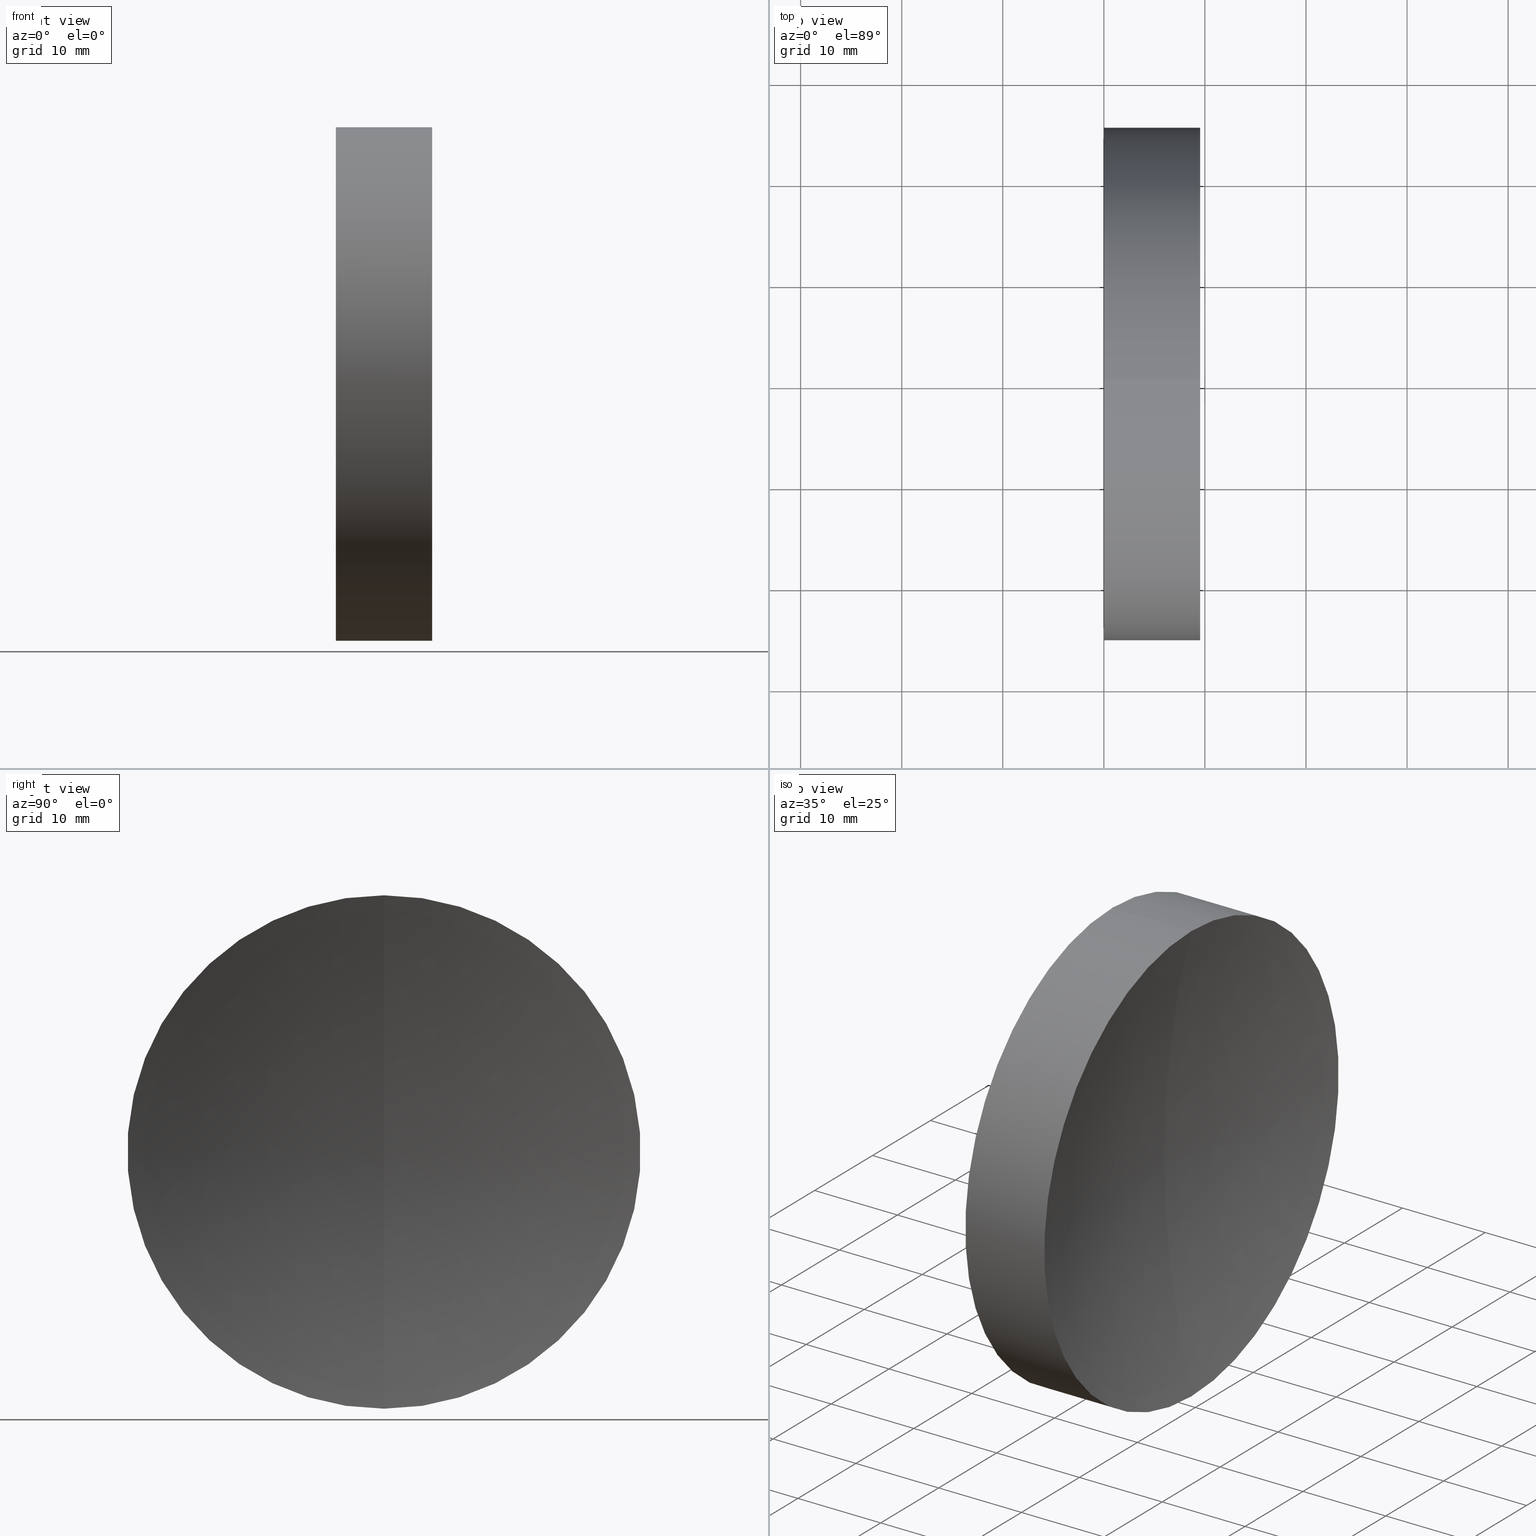
[diagram: canonical four-view strip — front | top / right | iso, engineering-drawing reading convention]
A machine part, canonical four-view strip (front | top / right | iso — engineering-drawing reading convention). The complete STEP part file that produces these views, byte-faithful:
ISO-10303-21;
HEADER;
FILE_DESCRIPTION (( 'STEP AP214' ),
    '1' );
FILE_NAME ('432530.STEP',
    '2019-08-28T02:59:02',
    ( 'user' ),
    ( '΢���й�' ),
    'SwSTEP 2.0',
    'SolidWorks 2016',
    '' );
FILE_SCHEMA (( 'AUTOMOTIVE_DESIGN' ));
ENDSEC;

DATA;
#1 = ORIENTED_EDGE ( 'NONE', *, *, #132, .T. ) ;
#2 = APPLICATION_CONTEXT ( 'automotive_design' ) ;
#3 = ORIENTED_EDGE ( 'NONE', *, *, #107, .T. ) ;
#4 = CARTESIAN_POINT ( 'NONE',  ( 0.0000000000000000000, 0.0000000000000000000, 0.0000000000000000000 ) ) ;
#5 = DIRECTION ( 'NONE',  ( -1.000000000000000000, -0.0000000000000000000, -0.0000000000000000000 ) ) ;
#6 = FACE_OUTER_BOUND ( 'NONE', #130, .T. ) ;
#7 = MANIFOLD_SOLID_BREP ( '��ת1', #49 ) ;
#8 =( NAMED_UNIT ( * ) PLANE_ANGLE_UNIT ( ) SI_UNIT ( $, .RADIAN. ) );
#9 = ADVANCED_FACE ( 'NONE', ( #109 ), #103, .T. ) ;
#10 = PRESENTATION_LAYER_ASSIGNMENT (  '', '', ( #33 ) ) ;
#11 = SURFACE_SIDE_STYLE ('',( #65 ) ) ;
#12 = ORIENTED_EDGE ( 'NONE', *, *, #78, .T. ) ;
#13 =( NAMED_UNIT ( * ) PLANE_ANGLE_UNIT ( ) SI_UNIT ( $, .RADIAN. ) );
#14 = VERTEX_POINT ( 'NONE', #116 ) ;
#15 = DIRECTION ( 'NONE',  ( 0.0000000000000000000, 1.000000000000000000, 0.0000000000000000000 ) ) ;
#16 = PRESENTATION_STYLE_ASSIGNMENT (( #102 ) ) ;
#17 =( LENGTH_UNIT ( ) NAMED_UNIT ( * ) SI_UNIT ( .MILLI., .METRE. ) );
#18 = MECHANICAL_DESIGN_GEOMETRIC_PRESENTATION_REPRESENTATION (  '', ( #33 ), #28 ) ;
#19 = DIRECTION ( 'NONE',  ( -1.000000000000000000, -0.0000000000000000000, -0.0000000000000000000 ) ) ;
#20 =( GEOMETRIC_REPRESENTATION_CONTEXT ( 3 ) GLOBAL_UNCERTAINTY_ASSIGNED_CONTEXT ( ( #114 ) ) GLOBAL_UNIT_ASSIGNED_CONTEXT ( ( #37, #13, #131 ) ) REPRESENTATION_CONTEXT ( 'NONE', 'WORKASPACE' ) );
#21 = ADVANCED_BREP_SHAPE_REPRESENTATION ( '432530', ( #7, #51 ), #25 ) ;
#22 = DIRECTION ( 'NONE',  ( 0.0000000000000000000, 0.0000000000000000000, 1.000000000000000000 ) ) ;
#23 = ORIENTED_EDGE ( 'NONE', *, *, #66, .F. ) ;
#24 =( LENGTH_UNIT ( ) NAMED_UNIT ( * ) SI_UNIT ( .MILLI., .METRE. ) );
#25 =( GEOMETRIC_REPRESENTATION_CONTEXT ( 3 ) GLOBAL_UNCERTAINTY_ASSIGNED_CONTEXT ( ( #155 ) ) GLOBAL_UNIT_ASSIGNED_CONTEXT ( ( #24, #148, #150 ) ) REPRESENTATION_CONTEXT ( 'NONE', 'WORKASPACE' ) );
#26 = CIRCLE ( 'NONE', #44, 25.40000000000006300 ) ;
#27 = SPHERICAL_SURFACE ( 'NONE', #47, 99.99999999999997200 ) ;
#28 =( GEOMETRIC_REPRESENTATION_CONTEXT ( 3 ) GLOBAL_UNCERTAINTY_ASSIGNED_CONTEXT ( ( #129 ) ) GLOBAL_UNIT_ASSIGNED_CONTEXT ( ( #17, #8, #161 ) ) REPRESENTATION_CONTEXT ( 'NONE', 'WORKASPACE' ) );
#29 = PRODUCT_DEFINITION_CONTEXT ( 'detailed design', #2, 'design' ) ;
#30 = AXIS2_PLACEMENT_3D ( 'NONE', #94, #69, #144 ) ;
#31 = DIRECTION ( 'NONE',  ( 0.0000000000000000000, 0.0000000000000000000, 1.000000000000000000 ) ) ;
#32 = LINE ( 'NONE', #135, #63 ) ;
#33 = STYLED_ITEM ( 'NONE', ( #85 ), #21 ) ;
#34 = DIRECTION ( 'NONE',  ( -1.000000000000000000, -0.0000000000000000000, -0.0000000000000000000 ) ) ;
#35 = ORIENTED_EDGE ( 'NONE', *, *, #78, .F. ) ;
#36 = EDGE_CURVE ( 'NONE', #86, #89, #141, .T. ) ;
#37 =( LENGTH_UNIT ( ) NAMED_UNIT ( * ) SI_UNIT ( .MILLI., .METRE. ) );
#38 = SHAPE_DEFINITION_REPRESENTATION ( #125, #21 ) ;
#39 = SPHERICAL_SURFACE ( 'NONE', #133, 99.99999999999997200 ) ;
#40 = AXIS2_PLACEMENT_3D ( 'NONE', #159, #83, #95 ) ;
#41 = CARTESIAN_POINT ( 'NONE',  ( 106.2499999999999600, 0.0000000000000000000, 0.0000000000000000000 ) ) ;
#42 = ORIENTED_EDGE ( 'NONE', *, *, #107, .F. ) ;
#43 = DIRECTION ( 'NONE',  ( 0.0000000000000000000, 1.000000000000000000, 0.0000000000000000000 ) ) ;
#44 = AXIS2_PLACEMENT_3D ( 'NONE', #108, #5, #31 ) ;
#45 = PRODUCT ( '432530', '432530', '', ( #157 ) ) ;
#46 = APPLICATION_PROTOCOL_DEFINITION ( 'draft international standard', 'automotive_design', 1998, #2 ) ;
#47 = AXIS2_PLACEMENT_3D ( 'NONE', #67, #43, #104 ) ;
#48 = DIRECTION ( 'NONE',  ( -0.0000000000000000000, 1.000000000000000000, 1.224646799147353200E-016 ) ) ;
#49 = CLOSED_SHELL ( 'NONE', ( #112, #164, #126, #59, #9 ) ) ;
#50 = EDGE_LOOP ( 'NONE', ( #3, #60 ) ) ;
#51 = AXIS2_PLACEMENT_3D ( 'NONE', #4, #22, #97 ) ;
#52 = COLOUR_RGB ( '',1.000000000000000000, 1.000000000000000000, 1.000000000000000000 ) ;
#53 = DIRECTION ( 'NONE',  ( -1.000000000000000000, -0.0000000000000000000, -0.0000000000000000000 ) ) ;
#54 = ORIENTED_EDGE ( 'NONE', *, *, #99, .F. ) ;
#55 = DIRECTION ( 'NONE',  ( 0.0000000000000000000, 0.0000000000000000000, 1.000000000000000000 ) ) ;
#56 = SURFACE_SIDE_STYLE ('',( #138 ) ) ;
#57 = LINE ( 'NONE', #136, #91 ) ;
#58 = ORIENTED_EDGE ( 'NONE', *, *, #82, .F. ) ;
#59 = ADVANCED_FACE ( 'NONE', ( #6 ), #39, .F. ) ;
#60 = ORIENTED_EDGE ( 'NONE', *, *, #36, .T. ) ;
#61 = CARTESIAN_POINT ( 'NONE',  ( 9.529578164691605100, 3.110602869834284000E-015, -25.40000000000005500 ) ) ;
#62 = DIRECTION ( 'NONE',  ( 0.0000000000000000000, -1.224646799147353200E-016, 1.000000000000000000 ) ) ;
#63 = VECTOR ( 'NONE', #19, 1000.000000000000000 ) ;
#64 = PRODUCT_DEFINITION ( 'δ֪', '', #72, #29 ) ;
#65 = SURFACE_STYLE_FILL_AREA ( #79 ) ;
#66 = EDGE_CURVE ( 'NONE', #68, #14, #70, .T. ) ;
#67 = CARTESIAN_POINT ( 'NONE',  ( 106.2499999999999600, 0.0000000000000000000, 0.0000000000000000000 ) ) ;
#68 = VERTEX_POINT ( 'NONE', #61 ) ;
#69 = DIRECTION ( 'NONE',  ( 1.000000000000000000, 0.0000000000000000000, 0.0000000000000000000 ) ) ;
#70 = CIRCLE ( 'NONE', #160, 25.40000000000006300 ) ;
#71 = FILL_AREA_STYLE ('',( #117 ) ) ;
#72 = PRODUCT_DEFINITION_FORMATION_WITH_SPECIFIED_SOURCE ( '�κ�', '', #45, .NOT_KNOWN. ) ;
#73 = CARTESIAN_POINT ( 'NONE',  ( 0.0000000000000000000, 0.0000000000000000000, 0.0000000000000000000 ) ) ;
#74 = CARTESIAN_POINT ( 'NONE',  ( 0.0000000000000000000, 0.0000000000000000000, 0.0000000000000000000 ) ) ;
#75 = CARTESIAN_POINT ( 'NONE',  ( 0.0000000000000000000, 0.0000000000000000000, 0.0000000000000000000 ) ) ;
#76 = CARTESIAN_POINT ( 'NONE',  ( 9.529578164691605100, 0.0000000000000000000, 0.0000000000000000000 ) ) ;
#77 = CIRCLE ( 'NONE', #127, 99.99999999999997200 ) ;
#78 = EDGE_CURVE ( 'NONE', #68, #92, #77, .T. ) ;
#79 = FILL_AREA_STYLE ('',( #101 ) ) ;
#80 = DIRECTION ( 'NONE',  ( -1.000000000000000000, -0.0000000000000000000, -0.0000000000000000000 ) ) ;
#81 = PRODUCT_RELATED_PRODUCT_CATEGORY ( 'part', '', ( #45 ) ) ;
#82 = EDGE_CURVE ( 'NONE', #14, #68, #26, .T. ) ;
#83 = DIRECTION ( 'NONE',  ( 0.0000000000000000000, -1.000000000000000000, 0.0000000000000000000 ) ) ;
#84 = EDGE_CURVE ( 'NONE', #14, #92, #122, .T. ) ;
#85 = PRESENTATION_STYLE_ASSIGNMENT (( #147 ) ) ;
#86 = VERTEX_POINT ( 'NONE', #113 ) ;
#87 = AXIS2_PLACEMENT_3D ( 'NONE', #142, #80, #152 ) ;
#88 = CIRCLE ( 'NONE', #162, 25.39999999999999900 ) ;
#89 = VERTEX_POINT ( 'NONE', #151 ) ;
#90 = ORIENTED_EDGE ( 'NONE', *, *, #82, .T. ) ;
#91 = VECTOR ( 'NONE', #34, 1000.000000000000000 ) ;
#92 = VERTEX_POINT ( 'NONE', #123 ) ;
#93 = ORIENTED_EDGE ( 'NONE', *, *, #66, .T. ) ;
#94 = CARTESIAN_POINT ( 'NONE',  ( 0.0000000000000000000, 0.0000000000000000000, 0.0000000000000000000 ) ) ;
#95 = DIRECTION ( 'NONE',  ( 0.0000000000000000000, 0.0000000000000000000, -1.000000000000000000 ) ) ;
#96 = FACE_OUTER_BOUND ( 'NONE', #50, .T. ) ;
#97 = DIRECTION ( 'NONE',  ( 1.000000000000000000, 0.0000000000000000000, 0.0000000000000000000 ) ) ;
#98 = MECHANICAL_DESIGN_GEOMETRIC_PRESENTATION_REPRESENTATION (  '', ( #105 ), #20 ) ;
#99 = EDGE_CURVE ( 'NONE', #14, #89, #57, .T. ) ;
#100 = FACE_OUTER_BOUND ( 'NONE', #154, .T. ) ;
#101 = FILL_AREA_STYLE_COLOUR ( '', #52 ) ;
#102 = SURFACE_STYLE_USAGE ( .BOTH. , #11 ) ;
#103 = CYLINDRICAL_SURFACE ( 'NONE', #87, 25.40000000000003100 ) ;
#104 = DIRECTION ( 'NONE',  ( 0.0000000000000000000, 0.0000000000000000000, 1.000000000000000000 ) ) ;
#105 = STYLED_ITEM ( 'NONE', ( #16 ), #7 ) ;
#106 = EDGE_LOOP ( 'NONE', ( #90, #1, #42, #54 ) ) ;
#107 = EDGE_CURVE ( 'NONE', #89, #86, #88, .T. ) ;
#108 = CARTESIAN_POINT ( 'NONE',  ( 9.529578164691605100, 0.0000000000000000000, 0.0000000000000000000 ) ) ;
#109 = FACE_OUTER_BOUND ( 'NONE', #165, .T. ) ;
#110 = DIRECTION ( 'NONE',  ( 0.0000000000000000000, 0.0000000000000000000, 1.000000000000000000 ) ) ;
#111 = CARTESIAN_POINT ( 'NONE',  ( 106.2499999999999600, 0.0000000000000000000, 0.0000000000000000000 ) ) ;
#112 = ADVANCED_FACE ( 'NONE', ( #128 ), #166, .T. ) ;
#113 = CARTESIAN_POINT ( 'NONE',  ( 0.0000000000000000000, 3.110602869834279200E-015, -25.39999999999999900 ) ) ;
#114 = UNCERTAINTY_MEASURE_WITH_UNIT (LENGTH_MEASURE( 1.000000000000000100E-005 ), #37, 'distance_accuracy_value', 'NONE');
#115 = PRESENTATION_LAYER_ASSIGNMENT (  '', '', ( #105 ) ) ;
#116 = CARTESIAN_POINT ( 'NONE',  ( 9.529578164691605100, 0.0000000000000000000, 25.40000000000005500 ) ) ;
#117 = FILL_AREA_STYLE_COLOUR ( '', #153 ) ;
#118 = PLANE ( 'NONE',  #30 ) ;
#119 = ORIENTED_EDGE ( 'NONE', *, *, #99, .T. ) ;
#120 = APPLICATION_CONTEXT ( 'automotive_design' ) ;
#121 = DIRECTION ( 'NONE',  ( -1.000000000000000000, -0.0000000000000000000, -0.0000000000000000000 ) ) ;
#122 = CIRCLE ( 'NONE', #40, 99.99999999999997200 ) ;
#123 = CARTESIAN_POINT ( 'NONE',  ( 6.249999999999977800, 0.0000000000000000000, 6.123233995736764500E-015 ) ) ;
#124 = ORIENTED_EDGE ( 'NONE', *, *, #84, .F. ) ;
#125 = PRODUCT_DEFINITION_SHAPE ( 'NONE', 'NONE',  #64 ) ;
#126 = ADVANCED_FACE ( 'NONE', ( #96 ), #118, .F. ) ;
#127 = AXIS2_PLACEMENT_3D ( 'NONE', #111, #48, #62 ) ;
#128 = FACE_OUTER_BOUND ( 'NONE', #106, .T. ) ;
#129 = UNCERTAINTY_MEASURE_WITH_UNIT (LENGTH_MEASURE( 1.000000000000000100E-005 ), #17, 'distance_accuracy_value', 'NONE');
#130 = EDGE_LOOP ( 'NONE', ( #35, #58, #134 ) ) ;
#131 =( NAMED_UNIT ( * ) SI_UNIT ( $, .STERADIAN. ) SOLID_ANGLE_UNIT ( ) );
#132 = EDGE_CURVE ( 'NONE', #68, #86, #32, .T. ) ;
#133 = AXIS2_PLACEMENT_3D ( 'NONE', #41, #15, #110 ) ;
#134 = ORIENTED_EDGE ( 'NONE', *, *, #84, .T. ) ;
#135 = CARTESIAN_POINT ( 'NONE',  ( 0.0000000000000000000, 3.110602869834280800E-015, -25.40000000000003100 ) ) ;
#136 = CARTESIAN_POINT ( 'NONE',  ( 0.0000000000000000000, 0.0000000000000000000, 25.40000000000003100 ) ) ;
#137 = APPLICATION_PROTOCOL_DEFINITION ( 'draft international standard', 'automotive_design', 1998, #120 ) ;
#138 = SURFACE_STYLE_FILL_AREA ( #71 ) ;
#139 = DIRECTION ( 'NONE',  ( -1.000000000000000000, -0.0000000000000000000, -0.0000000000000000000 ) ) ;
#140 = DIRECTION ( 'NONE',  ( -1.000000000000000000, -0.0000000000000000000, -0.0000000000000000000 ) ) ;
#141 = CIRCLE ( 'NONE', #143, 25.39999999999999900 ) ;
#142 = CARTESIAN_POINT ( 'NONE',  ( 0.0000000000000000000, 0.0000000000000000000, 0.0000000000000000000 ) ) ;
#143 = AXIS2_PLACEMENT_3D ( 'NONE', #75, #121, #156 ) ;
#144 = DIRECTION ( 'NONE',  ( 0.0000000000000000000, 0.0000000000000000000, -1.000000000000000000 ) ) ;
#145 = DIRECTION ( 'NONE',  ( 0.0000000000000000000, 0.0000000000000000000, 1.000000000000000000 ) ) ;
#146 = AXIS2_PLACEMENT_3D ( 'NONE', #73, #139, #145 ) ;
#147 = SURFACE_STYLE_USAGE ( .BOTH. , #56 ) ;
#148 =( NAMED_UNIT ( * ) PLANE_ANGLE_UNIT ( ) SI_UNIT ( $, .RADIAN. ) );
#149 = ORIENTED_EDGE ( 'NONE', *, *, #132, .F. ) ;
#150 =( NAMED_UNIT ( * ) SI_UNIT ( $, .STERADIAN. ) SOLID_ANGLE_UNIT ( ) );
#151 = CARTESIAN_POINT ( 'NONE',  ( 0.0000000000000000000, 0.0000000000000000000, 25.39999999999999900 ) ) ;
#152 = DIRECTION ( 'NONE',  ( 0.0000000000000000000, 0.0000000000000000000, 1.000000000000000000 ) ) ;
#153 = COLOUR_RGB ( '',1.000000000000000000, 1.000000000000000000, 1.000000000000000000 ) ;
#154 = EDGE_LOOP ( 'NONE', ( #23, #12, #124 ) ) ;
#155 = UNCERTAINTY_MEASURE_WITH_UNIT (LENGTH_MEASURE( 1.000000000000000100E-005 ), #24, 'distance_accuracy_value', 'NONE');
#156 = DIRECTION ( 'NONE',  ( 0.0000000000000000000, 0.0000000000000000000, 1.000000000000000000 ) ) ;
#157 = PRODUCT_CONTEXT ( 'NONE', #120, 'mechanical' ) ;
#158 = ORIENTED_EDGE ( 'NONE', *, *, #36, .F. ) ;
#159 = CARTESIAN_POINT ( 'NONE',  ( 106.2499999999999600, 0.0000000000000000000, 0.0000000000000000000 ) ) ;
#160 = AXIS2_PLACEMENT_3D ( 'NONE', #76, #140, #55 ) ;
#161 =( NAMED_UNIT ( * ) SI_UNIT ( $, .STERADIAN. ) SOLID_ANGLE_UNIT ( ) );
#162 = AXIS2_PLACEMENT_3D ( 'NONE', #74, #53, #163 ) ;
#163 = DIRECTION ( 'NONE',  ( 0.0000000000000000000, 0.0000000000000000000, 1.000000000000000000 ) ) ;
#164 = ADVANCED_FACE ( 'NONE', ( #100 ), #27, .F. ) ;
#165 = EDGE_LOOP ( 'NONE', ( #149, #93, #119, #158 ) ) ;
#166 = CYLINDRICAL_SURFACE ( 'NONE', #146, 25.40000000000003100 ) ;
ENDSEC;
END-ISO-10303-21;
